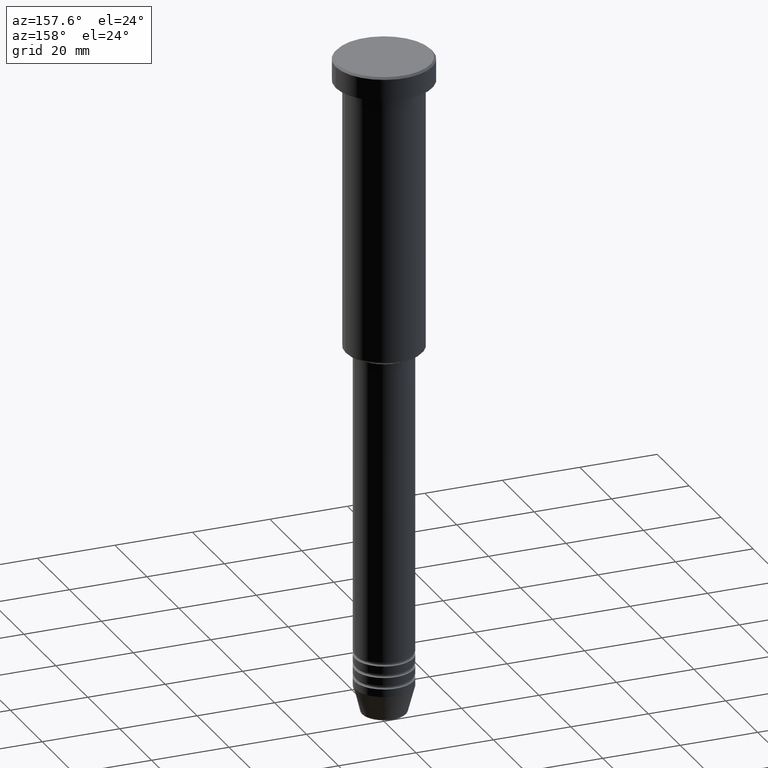
[diagram: clean part render]
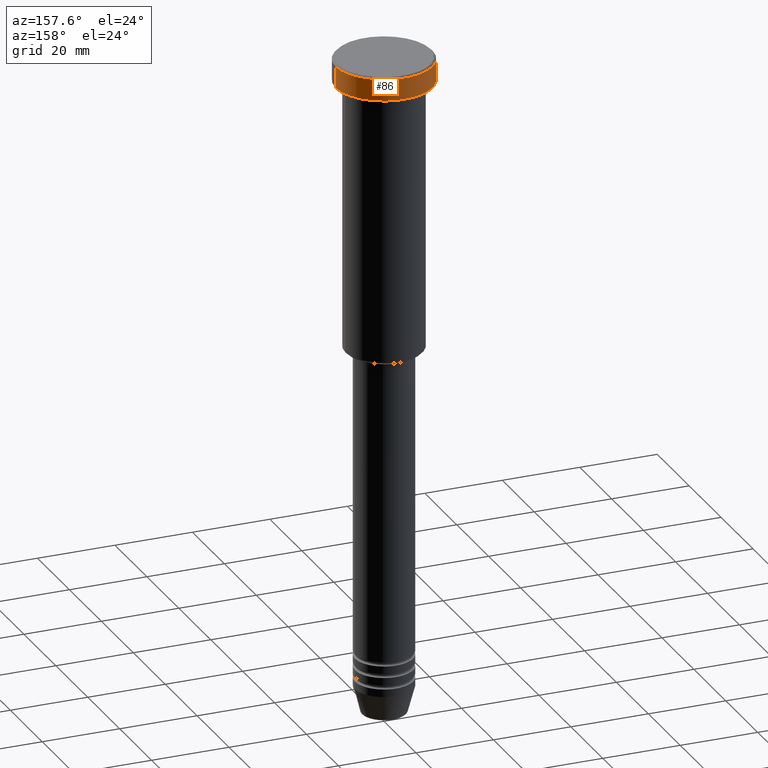
[diagram: same view with one face highlighted and labeled with its STEP entity id]
A machine part, auxiliary view. The second image highlights one B-rep face of the part: STEP entity #86.
In plain terms, the highlighted cylindrical surface (partial cylindrical patch) has radius 12.5 mm, axis along (-0, -0, 1).
Its self-contained STEP definition (entity closure, byte-faithful):
#15 = DIRECTION ( 'NONE',  ( 1.000000000000000000, 0.000000000000000000, 0.000000000000000000 ) ) ;
#71 = CARTESIAN_POINT ( 'NONE',  ( -12.50000000000000000, 1.530808498934191521E-15, 0.000000000000000000 ) ) ;
#83 = CARTESIAN_POINT ( 'NONE',  ( 12.50000000000000000, 0.000000000000000000, -0.4999999999999917843 ) ) ;
#86 = ADVANCED_FACE ( 'NONE', ( #616 ), #1064, .T. ) ;
#140 = AXIS2_PLACEMENT_3D ( 'NONE', #245, #690, #430 ) ;
#245 = CARTESIAN_POINT ( 'NONE',  ( 0.000000000000000000, 0.000000000000000000, -5.999999999999996447 ) ) ;
#289 = EDGE_CURVE ( 'NONE', #653, #709, #689, .T. ) ;
#352 = CARTESIAN_POINT ( 'NONE',  ( -12.50000000000000000, 1.530808498934191521E-15, -0.4999999999999917843 ) ) ;
#427 = DIRECTION ( 'NONE',  ( -0.000000000000000000, -0.000000000000000000, 1.000000000000000000 ) ) ;
#430 = DIRECTION ( 'NONE',  ( 1.000000000000000000, 0.000000000000000000, 0.000000000000000000 ) ) ;
#494 = VECTOR ( 'NONE', #427, 1000.000000000000000 ) ;
#508 = DIRECTION ( 'NONE',  ( -0.000000000000000000, -0.000000000000000000, 1.000000000000000000 ) ) ;
#517 = CARTESIAN_POINT ( 'NONE',  ( 0.000000000000000000, 0.000000000000000000, 0.000000000000000000 ) ) ;
#555 = CIRCLE ( 'NONE', #140, 12.50000000000000000 ) ;
#605 = ORIENTED_EDGE ( 'NONE', *, *, #657, .T. ) ;
#615 = LINE ( 'NONE', #71, #1068 ) ;
#616 = FACE_OUTER_BOUND ( 'NONE', #1059, .T. ) ;
#621 = LINE ( 'NONE', #884, #494 ) ;
#653 = VERTEX_POINT ( 'NONE', #352 ) ;
#657 = EDGE_CURVE ( 'NONE', #1056, #653, #615, .T. ) ;
#688 = EDGE_CURVE ( 'NONE', #1176, #709, #621, .T. ) ;
#689 = CIRCLE ( 'NONE', #1072, 12.50000000000000000 ) ;
#690 = DIRECTION ( 'NONE',  ( -0.000000000000000000, -0.000000000000000000, 1.000000000000000000 ) ) ;
#695 = CARTESIAN_POINT ( 'NONE',  ( 0.000000000000000000, 0.000000000000000000, -0.4999999999999917843 ) ) ;
#709 = VERTEX_POINT ( 'NONE', #83 ) ;
#802 = AXIS2_PLACEMENT_3D ( 'NONE', #517, #928, #15 ) ;
#884 = CARTESIAN_POINT ( 'NONE',  ( 12.50000000000000000, 0.000000000000000000, 0.000000000000000000 ) ) ;
#924 = CARTESIAN_POINT ( 'NONE',  ( 12.50000000000000000, 0.000000000000000000, -5.999999999999996447 ) ) ;
#927 = DIRECTION ( 'NONE',  ( 0.000000000000000000, 0.000000000000000000, -1.000000000000000000 ) ) ;
#928 = DIRECTION ( 'NONE',  ( -0.000000000000000000, -0.000000000000000000, 1.000000000000000000 ) ) ;
#1008 = DIRECTION ( 'NONE',  ( 1.000000000000000000, 0.000000000000000000, 0.000000000000000000 ) ) ;
#1056 = VERTEX_POINT ( 'NONE', #1060 ) ;
#1059 = EDGE_LOOP ( 'NONE', ( #1182, #605, #1081, #1084 ) ) ;
#1060 = CARTESIAN_POINT ( 'NONE',  ( -12.50000000000000000, 1.530808498934191521E-15, -5.999999999999996447 ) ) ;
#1064 = CYLINDRICAL_SURFACE ( 'NONE', #802, 12.50000000000000000 ) ;
#1068 = VECTOR ( 'NONE', #508, 1000.000000000000000 ) ;
#1072 = AXIS2_PLACEMENT_3D ( 'NONE', #695, #927, #1008 ) ;
#1081 = ORIENTED_EDGE ( 'NONE', *, *, #289, .T. ) ;
#1084 = ORIENTED_EDGE ( 'NONE', *, *, #688, .F. ) ;
#1116 = EDGE_CURVE ( 'NONE', #1176, #1056, #555, .T. ) ;
#1176 = VERTEX_POINT ( 'NONE', #924 ) ;
#1182 = ORIENTED_EDGE ( 'NONE', *, *, #1116, .T. ) ;